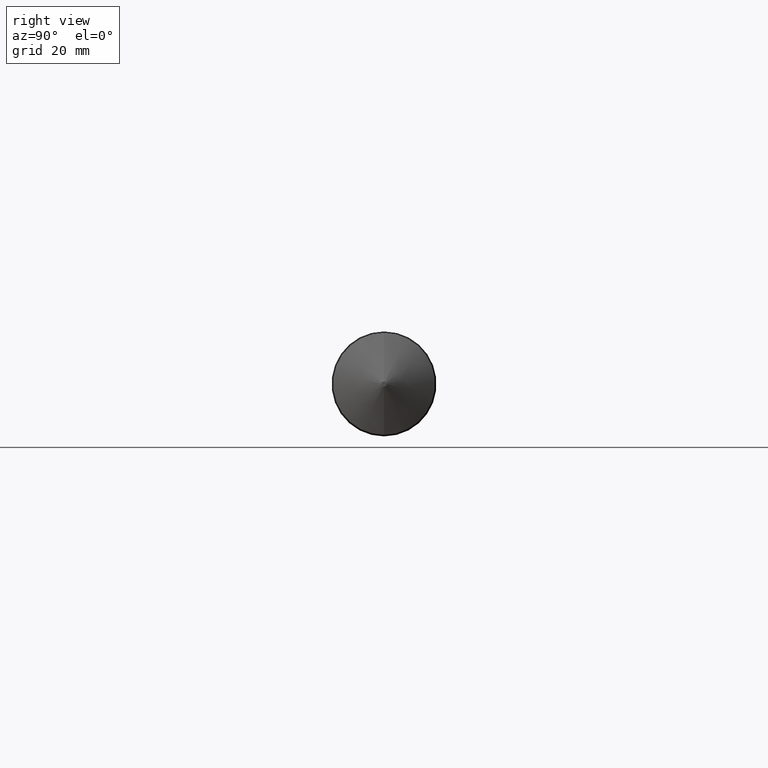
[diagram: clean part render]
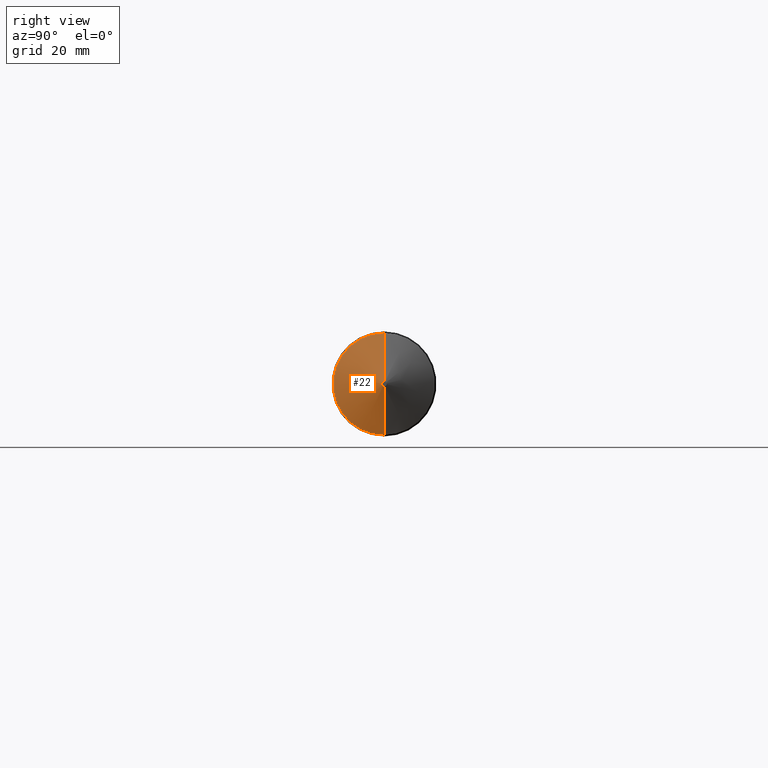
[diagram: same view with one face highlighted and labeled with its STEP entity id]
A machine part, right view. The second image highlights one B-rep face of the part: STEP entity #22.
In plain terms, the highlighted conical surface has half-angle 70 deg.
Its self-contained STEP definition (entity closure, byte-faithful):
#22 = ADVANCED_FACE ( 'NONE', ( #182 ), #359, .T. ) ;
#27 = CARTESIAN_POINT ( 'NONE',  ( 4.723501418434322474, 4.218908223062640330E-17, -0.3445000000000006390 ) ) ;
#35 = LINE ( 'NONE', #205, #107 ) ;
#45 = ORIENTED_EDGE ( 'NONE', *, *, #87, .F. ) ;
#55 = AXIS2_PLACEMENT_3D ( 'NONE', #338, #278, #157 ) ;
#61 = LINE ( 'NONE', #146, #318 ) ;
#63 = DIRECTION ( 'NONE',  ( -0.3420201433256677692, 0.000000000000000000, 0.9396926207859086499 ) ) ;
#64 = ORIENTED_EDGE ( 'NONE', *, *, #325, .T. ) ;
#79 = DIRECTION ( 'NONE',  ( 1.000000000000000000, -0.000000000000000000, -0.000000000000000000 ) ) ;
#87 = EDGE_CURVE ( 'NONE', #352, #362, #285, .T. ) ;
#90 = DIRECTION ( 'NONE',  ( 1.000000000000000000, -0.000000000000000000, -0.000000000000000000 ) ) ;
#107 = VECTOR ( 'NONE', #63, 39.37007874015748143 ) ;
#116 = VERTEX_POINT ( 'NONE', #27 ) ;
#117 = CARTESIAN_POINT ( 'NONE',  ( 4.723501418434322474, 0.000000000000000000, 0.3445000000000006390 ) ) ;
#143 = DIRECTION ( 'NONE',  ( 0.000000000000000000, 0.000000000000000000, -1.000000000000000000 ) ) ;
#146 = CARTESIAN_POINT ( 'NONE',  ( 4.842519685039370358, 2.143131898507941560E-18, -0.01750000000000059841 ) ) ;
#157 = DIRECTION ( 'NONE',  ( 0.000000000000000000, 0.000000000000000000, 1.000000000000000000 ) ) ;
#163 = DIRECTION ( 'NONE',  ( 0.000000000000000000, 0.000000000000000000, -1.000000000000000000 ) ) ;
#171 = CARTESIAN_POINT ( 'NONE',  ( 4.842519685039370358, 2.216610706456716106E-17, -0.01750000000000059841 ) ) ;
#182 = FACE_OUTER_BOUND ( 'NONE', #310, .T. ) ;
#205 = CARTESIAN_POINT ( 'NONE',  ( 4.842519685039370358, 0.000000000000000000, 0.01750000000000059841 ) ) ;
#223 = CARTESIAN_POINT ( 'NONE',  ( 4.842519685039370358, 0.000000000000000000, 0.000000000000000000 ) ) ;
#258 = CARTESIAN_POINT ( 'NONE',  ( 4.842519685039370358, 0.000000000000000000, 0.01750000000000059841 ) ) ;
#262 = DIRECTION ( 'NONE',  ( -0.3420201433256677692, 1.150791560227850763E-16, -0.9396926207859086499 ) ) ;
#263 = ORIENTED_EDGE ( 'NONE', *, *, #358, .F. ) ;
#266 = VERTEX_POINT ( 'NONE', #117 ) ;
#278 = DIRECTION ( 'NONE',  ( -1.000000000000000000, 0.000000000000000000, 0.000000000000000000 ) ) ;
#285 = CIRCLE ( 'NONE', #374, 0.01750000000000059841 ) ;
#299 = CIRCLE ( 'NONE', #371, 0.3445000000000005835 ) ;
#310 = EDGE_LOOP ( 'NONE', ( #263, #45, #64, #354 ) ) ;
#318 = VECTOR ( 'NONE', #262, 39.37007874015748143 ) ;
#325 = EDGE_CURVE ( 'NONE', #352, #266, #35, .T. ) ;
#326 = CARTESIAN_POINT ( 'NONE',  ( 4.723501418434322474, 0.000000000000000000, 0.000000000000000000 ) ) ;
#338 = CARTESIAN_POINT ( 'NONE',  ( 4.842519685039370358, 0.000000000000000000, 0.000000000000000000 ) ) ;
#352 = VERTEX_POINT ( 'NONE', #258 ) ;
#354 = ORIENTED_EDGE ( 'NONE', *, *, #376, .T. ) ;
#358 = EDGE_CURVE ( 'NONE', #362, #116, #61, .T. ) ;
#359 = CONICAL_SURFACE ( 'NONE', #55, 0.01750000000000059841, 1.221730476396031717 ) ;
#362 = VERTEX_POINT ( 'NONE', #171 ) ;
#371 = AXIS2_PLACEMENT_3D ( 'NONE', #326, #90, #143 ) ;
#374 = AXIS2_PLACEMENT_3D ( 'NONE', #223, #79, #163 ) ;
#376 = EDGE_CURVE ( 'NONE', #266, #116, #299, .T. ) ;